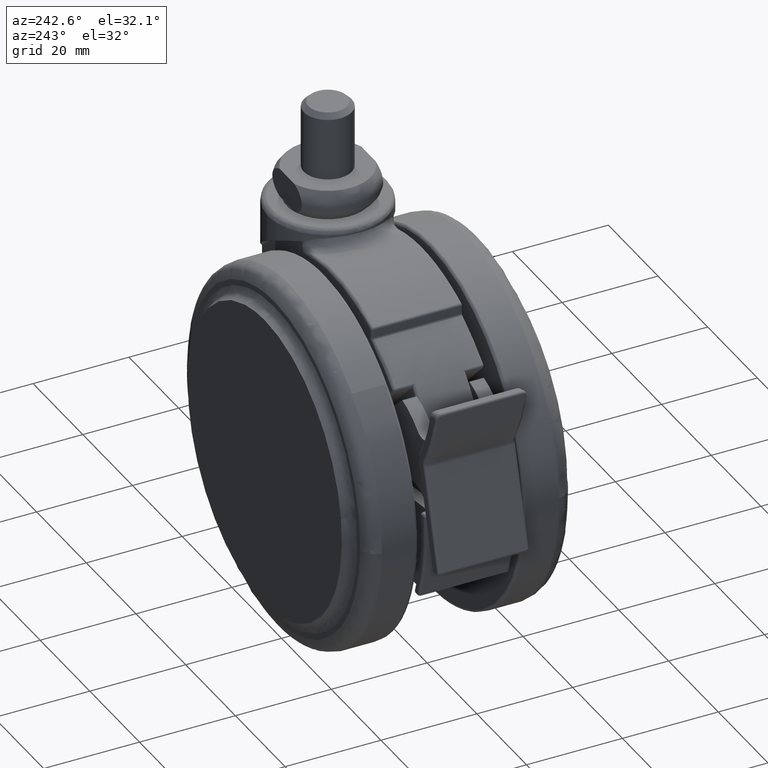
[diagram: clean part render]
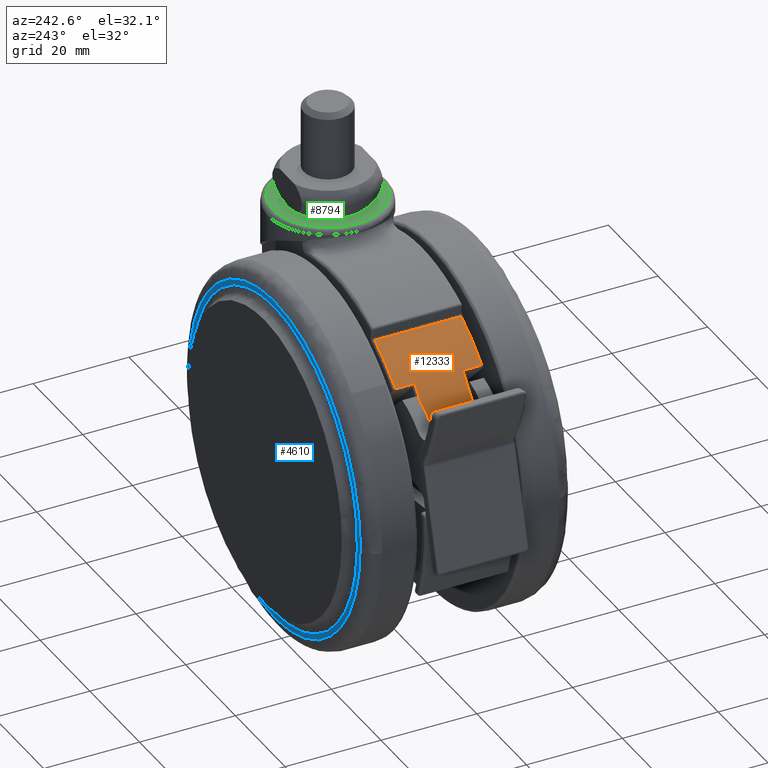
[diagram: same view with three faces highlighted in distinct colors, each labeled with its STEP entity id]
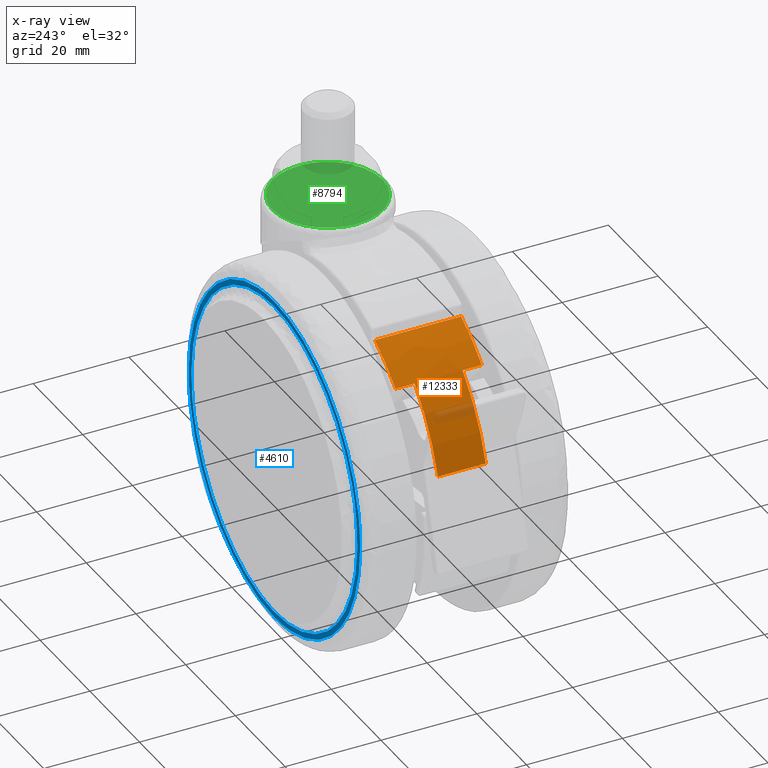
[diagram: x-ray of the same camera — body ghosted, the three highlighted faces saturated]
A machine part, auxiliary view with three faces highlighted in distinct colors.
The next image is the same camera in x-ray (body ghosted, the three faces saturated) — at least one of them is partly hidden behind the body in this view.
Their STEP definitions:

[orange] entity #12333 — the highlighted face is a freeform B-spline surface patch.
#11226=CARTESIAN_POINT('',(-36.270587493867652,-8.999999999999789,-8.984277112334031));
#11227=VERTEX_POINT('',#11226);
#11241=CARTESIAN_POINT('',(-44.607320986225851,-8.999999999999789,-14.956319708859120));
#11242=VERTEX_POINT('',#11241);
#11243=CARTESIAN_POINT('',(-44.607320986225872,-8.999999999999789,-14.956319708859100));
#11244=CARTESIAN_POINT('',(-40.874818428619925,-8.999999999999787,-11.361849371550587));
#11245=CARTESIAN_POINT('',(-36.270587493867659,-8.999999999999789,-8.984277112334016));
#11253=(BOUNDED_CURVE()B_SPLINE_CURVE(2,(#11243,#11244,#11245),.UNSPECIFIED.,.F.,.U.)CURVE()GEOMETRIC_REPRESENTATION_ITEM()QUASI_UNIFORM_CURVE()RATIONAL_B_SPLINE_CURVE((1.0,0.989513914268507,1.0))REPRESENTATION_ITEM(''));
#11254=EDGE_CURVE('',#11242,#11227,#11253,.T.);
#11402=CARTESIAN_POINT('',(-36.270587493867652,9.000000000000231,-8.984277112334031));
#11403=VERTEX_POINT('',#11402);
#11417=CARTESIAN_POINT('',(-36.270587493867652,-8.999999999999789,-8.984277112334031));
#11418=CARTESIAN_POINT('',(-36.270587493867652,9.000000000000231,-8.984277112334031));
#11419=QUASI_UNIFORM_CURVE('',1,(#11417,#11418),.UNSPECIFIED.,.F.,.U.);
#11420=EDGE_CURVE('',#11227,#11403,#11419,.T.);
#11474=CARTESIAN_POINT('',(-44.607320986225098,9.000000000000231,-14.956319708858400));
#11475=VERTEX_POINT('',#11474);
#11489=CARTESIAN_POINT('',(-36.270587493867652,9.000000000000231,-8.984277112334009));
#11490=CARTESIAN_POINT('',(-40.874818428619434,9.000000000000231,-11.361849371550329));
#11491=CARTESIAN_POINT('',(-44.607320986225112,9.000000000000231,-14.956319708858370));
#11499=(BOUNDED_CURVE()B_SPLINE_CURVE(2,(#11489,#11490,#11491),.UNSPECIFIED.,.F.,.U.)CURVE()GEOMETRIC_REPRESENTATION_ITEM()QUASI_UNIFORM_CURVE()RATIONAL_B_SPLINE_CURVE((1.0,0.989513914268509,1.0))REPRESENTATION_ITEM(''));
#11500=EDGE_CURVE('',#11403,#11475,#11499,.T.);
#12265=CARTESIAN_POINT('',(-54.305881331801245,9.450000000000237,-31.463765470249449));
#12266=CARTESIAN_POINT('',(-54.305881331801245,-9.461249999999788,-31.463765470249449));
#12267=CARTESIAN_POINT('',(-50.068826557946451,9.450000000000234,-15.417471439264148));
#12268=CARTESIAN_POINT('',(-50.068826557946451,-9.461249999999787,-15.417471439264148));
#12269=CARTESIAN_POINT('',(-35.039308708485585,9.450000000000237,-8.378311084632692));
#12270=CARTESIAN_POINT('',(-35.039308708485585,-9.461249999999790,-8.378311084632692));
#12278=(BOUNDED_SURFACE()B_SPLINE_SURFACE(1,2,((#12265,#12267,#12269),(#12266,#12268,#12270)),.UNSPECIFIED.,.F.,.F.,.U.)B_SPLINE_SURFACE_WITH_KNOTS((2,2),(3,3),(0.0,18.911250000000020),(0.0,31.553598569707781),.UNSPECIFIED.)GEOMETRIC_REPRESENTATION_ITEM()RATIONAL_B_SPLINE_SURFACE(((0.999165930924091,0.904324913825544,0.997371939502094),(0.999165930924091,0.904324913825544,0.997371939502094)))REPRESENTATION_ITEM('')SURFACE());
#12279=ORIENTED_EDGE('',*,*,#11254,.T.);
#12280=ORIENTED_EDGE('',*,*,#11420,.T.);
#12281=ORIENTED_EDGE('',*,*,#11500,.T.);
#12282=CARTESIAN_POINT('',(-44.607320986225098,4.999999933647231,-14.956319708858400));
#12283=VERTEX_POINT('',#12282);
#12284=CARTESIAN_POINT('',(-44.607320986225098,9.000000000000231,-14.956319708858400));
#12285=CARTESIAN_POINT('',(-44.607320986225098,4.999999933647231,-14.956319708858400));
#12286=QUASI_UNIFORM_CURVE('',1,(#12284,#12285),.UNSPECIFIED.,.F.,.U.);
#12287=EDGE_CURVE('',#11475,#12283,#12286,.T.);
#12288=ORIENTED_EDGE('',*,*,#12287,.T.);
#12289=CARTESIAN_POINT('',(-53.930638445239602,4.999999933647240,-30.146207961035351));
#12290=VERTEX_POINT('',#12289);
#12291=CARTESIAN_POINT('',(-44.607320986225119,4.999999933647191,-14.956319708858370));
#12292=CARTESIAN_POINT('',(-51.238584190148458,4.999999933647191,-21.342351203147544));
#12293=CARTESIAN_POINT('',(-53.930638445239587,4.999999933647191,-30.146207961035351));
#12301=(BOUNDED_CURVE()B_SPLINE_CURVE(2,(#12291,#12292,#12293),.UNSPECIFIED.,.F.,.U.)CURVE()GEOMETRIC_REPRESENTATION_ITEM()QUASI_UNIFORM_CURVE()RATIONAL_B_SPLINE_CURVE((1.0,0.967980025406699,1.0))REPRESENTATION_ITEM(''));
#12302=EDGE_CURVE('',#12283,#12290,#12301,.T.);
#12303=ORIENTED_EDGE('',*,*,#12302,.T.);
#12304=CARTESIAN_POINT('',(-53.930638445239602,-4.999999933647191,-30.146207961035351));
#12305=VERTEX_POINT('',#12304);
#12306=CARTESIAN_POINT('',(-53.930638445239602,4.999999933647240,-30.146207961035351));
#12307=CARTESIAN_POINT('',(-53.930638445239602,-4.999999933647191,-30.146207961035351));
#12308=QUASI_UNIFORM_CURVE('',1,(#12306,#12307),.UNSPECIFIED.,.F.,.U.);
#12309=EDGE_CURVE('',#12290,#12305,#12308,.T.);
#12310=ORIENTED_EDGE('',*,*,#12309,.T.);
#12311=CARTESIAN_POINT('',(-44.607320986225851,-4.999999933647191,-14.956319708859120));
#12312=VERTEX_POINT('',#12311);
#12313=CARTESIAN_POINT('',(-53.930638445239587,-4.999999933647191,-30.146207961035358));
#12314=CARTESIAN_POINT('',(-51.238584190148636,-4.999999933647191,-21.342351203148091));
#12315=CARTESIAN_POINT('',(-44.607320986225872,-4.999999933647191,-14.956319708859100));
#12323=(BOUNDED_CURVE()B_SPLINE_CURVE(2,(#12313,#12314,#12315),.UNSPECIFIED.,.F.,.U.)CURVE()GEOMETRIC_REPRESENTATION_ITEM()QUASI_UNIFORM_CURVE()RATIONAL_B_SPLINE_CURVE((1.0,0.967980025406703,1.0))REPRESENTATION_ITEM(''));
#12324=EDGE_CURVE('',#12305,#12312,#12323,.T.);
#12325=ORIENTED_EDGE('',*,*,#12324,.T.);
#12326=CARTESIAN_POINT('',(-44.607320986225851,-4.999999933647191,-14.956319708859120));
#12327=CARTESIAN_POINT('',(-44.607320986225851,-8.999999999999789,-14.956319708859120));
#12328=QUASI_UNIFORM_CURVE('',1,(#12326,#12327),.UNSPECIFIED.,.F.,.U.);
#12329=EDGE_CURVE('',#12312,#11242,#12328,.T.);
#12330=ORIENTED_EDGE('',*,*,#12329,.T.);
#12331=EDGE_LOOP('',(#12279,#12280,#12281,#12288,#12303,#12310,#12325,#12330));
#12332=FACE_OUTER_BOUND('',#12331,.T.);
#12333=ADVANCED_FACE('',(#12332),#12278,.T.);

[blue] entity #4610 — the highlighted face is a freeform B-spline surface patch.
#4403=CARTESIAN_POINT('',(-54.497276025979460,21.500000000000028,-40.933528376008518));
#4404=VERTEX_POINT('',#4403);
#4418=CARTESIAN_POINT('',(-20.0,21.500000000000000,-75.000000000000014));
#4419=VERTEX_POINT('',#4418);
#4420=CARTESIAN_POINT('',(-54.497276025979467,21.500000000000025,-40.933528376008510));
#4421=CARTESIAN_POINT('',(-54.069161582255717,21.500000000000014,-75.000000000005983));
#4422=CARTESIAN_POINT('',(-20.0,21.500000000000000,-75.000000000000014));
#4430=(BOUNDED_CURVE()B_SPLINE_CURVE(2,(#4420,#4421,#4422),.UNSPECIFIED.,.F.,.U.)B_SPLINE_CURVE_WITH_KNOTS((3,3),(0.752215704078379,1.0),.UNSPECIFIED.)CURVE()GEOMETRIC_REPRESENTATION_ITEM()RATIONAL_B_SPLINE_CURVE((0.994854295643767,0.709702639984365,1.0))REPRESENTATION_ITEM(''));
#4431=EDGE_CURVE('',#4404,#4419,#4430,.T.);
#4433=CARTESIAN_POINT('',(14.497276025979470,21.499999999999972,-40.066471623991482));
#4434=VERTEX_POINT('',#4433);
#4435=CARTESIAN_POINT('',(-20.0,21.500000000000000,-75.000000000000014));
#4436=CARTESIAN_POINT('',(14.500000000468120,21.499999999999982,-74.999999999994145));
#4437=CARTESIAN_POINT('',(14.500000000942149,21.499999999999972,-40.499999999988169));
#4438=CARTESIAN_POINT('',(14.500000000945130,21.499999999999968,-40.283227254257461));
#4439=CARTESIAN_POINT('',(14.497276025979462,21.499999999999972,-40.066471623991468));
#4447=(BOUNDED_CURVE()B_SPLINE_CURVE(2,(#4435,#4436,#4437,#4438,#4439),.UNSPECIFIED.,.F.,.U.)B_SPLINE_CURVE_WITH_KNOTS((3,2,3),(0.0,0.250000000000000,0.252215704078379),.UNSPECIFIED.)CURVE()GEOMETRIC_REPRESENTATION_ITEM()RATIONAL_B_SPLINE_CURVE((1.0,0.707106781186548,1.0,0.997404141202182,0.994854295643766))REPRESENTATION_ITEM(''));
#4448=EDGE_CURVE('',#4419,#4434,#4447,.T.);
#4497=CARTESIAN_POINT('',(-20.0,21.500000000000000,-5.999999999999998));
#4498=VERTEX_POINT('',#4497);
#4499=CARTESIAN_POINT('',(14.497276025979462,21.499999999999972,-40.066471623991468));
#4500=CARTESIAN_POINT('',(14.069161582255688,21.499999999999982,-5.999999999994046));
#4501=CARTESIAN_POINT('',(-20.0,21.500000000000000,-5.999999999999998));
#4509=(BOUNDED_CURVE()B_SPLINE_CURVE(2,(#4499,#4500,#4501),.UNSPECIFIED.,.F.,.U.)B_SPLINE_CURVE_WITH_KNOTS((3,3),(0.252215704078379,0.500000000000000),.UNSPECIFIED.)CURVE()GEOMETRIC_REPRESENTATION_ITEM()RATIONAL_B_SPLINE_CURVE((0.994854295643766,0.709702639984365,1.0))REPRESENTATION_ITEM(''));
#4510=EDGE_CURVE('',#4434,#4498,#4509,.T.);
#4512=CARTESIAN_POINT('',(-20.0,21.500000000000000,-5.999999999999998));
#4513=CARTESIAN_POINT('',(-54.500000000468120,21.500000000000011,-6.000000000005882));
#4514=CARTESIAN_POINT('',(-54.500000000942158,21.500000000000028,-40.500000000011852));
#4515=CARTESIAN_POINT('',(-54.500000000945143,21.500000000000028,-40.716772745742539));
#4516=CARTESIAN_POINT('',(-54.497276025979467,21.500000000000025,-40.933528376008510));
#4524=(BOUNDED_CURVE()B_SPLINE_CURVE(2,(#4512,#4513,#4514,#4515,#4516),.UNSPECIFIED.,.F.,.U.)B_SPLINE_CURVE_WITH_KNOTS((3,2,3),(0.500000000000000,0.750000000000000,0.752215704078379),.UNSPECIFIED.)CURVE()GEOMETRIC_REPRESENTATION_ITEM()RATIONAL_B_SPLINE_CURVE((1.0,0.707106781186548,1.0,0.997404141202182,0.994854295643767))REPRESENTATION_ITEM(''));
#4525=EDGE_CURVE('',#4498,#4404,#4524,.T.);
#4533=CARTESIAN_POINT('',(17.943553767249981,21.500000000000000,-2.553450133735389));
#4534=CARTESIAN_POINT('',(17.943553767249981,21.500000000000000,-78.446551716988836));
#4535=CARTESIAN_POINT('',(-57.943555617828068,21.500000000000000,-2.553450133735389));
#4536=CARTESIAN_POINT('',(-57.943555617828068,21.500000000000000,-78.446551716988836));
#4537=B_SPLINE_SURFACE_WITH_KNOTS('',1,1,((#4533,#4535),(#4534,#4536)),.UNSPECIFIED.,.F.,.F.,.U.,(2,2),(2,2),(0.0,75.893101583253440),(0.0,75.887109385078048),.UNSPECIFIED.);
#4538=ORIENTED_EDGE('',*,*,#4431,.F.);
#4539=ORIENTED_EDGE('',*,*,#4525,.F.);
#4540=ORIENTED_EDGE('',*,*,#4510,.F.);
#4541=ORIENTED_EDGE('',*,*,#4448,.F.);
#4542=EDGE_LOOP('',(#4538,#4539,#4540,#4541));
#4543=FACE_OUTER_BOUND('',#4542,.T.);
#4544=CARTESIAN_POINT('',(-20.0,21.500000000000000,-7.116724942436252));
#4545=VERTEX_POINT('',#4544);
#4546=CARTESIAN_POINT('',(-53.004433129182772,21.499999999864560,-35.484977837854771));
#4547=VERTEX_POINT('',#4546);
#4548=CARTESIAN_POINT('',(-20.0,21.500000000000000,-7.116724942436252));
#4549=CARTESIAN_POINT('',(-48.693878350418096,21.499999999932285,-7.116724942552643));
#4550=CARTESIAN_POINT('',(-53.004433129182772,21.499999999864553,-35.484977837854771));
#4558=(BOUNDED_CURVE()B_SPLINE_CURVE(2,(#4548,#4549,#4550),.UNSPECIFIED.,.F.,.U.)B_SPLINE_CURVE_WITH_KNOTS((3,3),(0.500000000000000,0.724102415376154),.UNSPECIFIED.)CURVE()GEOMETRIC_REPRESENTATION_ITEM()RATIONAL_B_SPLINE_CURVE((1.0,0.737447688866436,0.945604234433857))REPRESENTATION_ITEM(''));
#4559=EDGE_CURVE('',#4545,#4547,#4558,.T.);
#4560=ORIENTED_EDGE('',*,*,#4559,.T.);
#4561=CARTESIAN_POINT('',(-20.0,21.500000000000039,-73.883275057563750));
#4562=VERTEX_POINT('',#4561);
#4563=CARTESIAN_POINT('',(-53.004433129182772,21.499999999864553,-35.484977837854771));
#4564=CARTESIAN_POINT('',(-53.383275056081594,21.499999999868947,-37.978179789296441));
#4565=CARTESIAN_POINT('',(-53.383275056139453,21.499999999874071,-40.500000000216431));
#4566=CARTESIAN_POINT('',(-53.383275056905411,21.499999999941803,-73.883275057663823));
#4567=CARTESIAN_POINT('',(-20.0,21.500000000000039,-73.883275057563750));
#4575=(BOUNDED_CURVE()B_SPLINE_CURVE(2,(#4563,#4564,#4565,#4566,#4567),.UNSPECIFIED.,.F.,.U.)B_SPLINE_CURVE_WITH_KNOTS((3,2,3),(0.724102415376154,0.750000000000000,1.0),.UNSPECIFIED.)CURVE()GEOMETRIC_REPRESENTATION_ITEM()RATIONAL_B_SPLINE_CURVE((0.945604234433857,0.969659092320111,1.0,0.707106781186547,1.0))REPRESENTATION_ITEM(''));
#4576=EDGE_CURVE('',#4547,#4562,#4575,.T.);
#4577=ORIENTED_EDGE('',*,*,#4576,.T.);
#4578=CARTESIAN_POINT('',(13.004433129182781,21.499999999864510,-45.515022162145229));
#4579=VERTEX_POINT('',#4578);
#4580=CARTESIAN_POINT('',(-20.0,21.500000000000039,-73.883275057563750));
#4581=CARTESIAN_POINT('',(8.693878350418109,21.499999999932275,-73.883275057447378));
#4582=CARTESIAN_POINT('',(13.004433129182775,21.499999999864510,-45.515022162145229));
#4590=(BOUNDED_CURVE()B_SPLINE_CURVE(2,(#4580,#4581,#4582),.UNSPECIFIED.,.F.,.U.)B_SPLINE_CURVE_WITH_KNOTS((3,3),(0.0,0.224102415376154),.UNSPECIFIED.)CURVE()GEOMETRIC_REPRESENTATION_ITEM()RATIONAL_B_SPLINE_CURVE((1.0,0.737447688866436,0.945604234433857))REPRESENTATION_ITEM(''));
#4591=EDGE_CURVE('',#4562,#4579,#4590,.T.);
#4592=ORIENTED_EDGE('',*,*,#4591,.T.);
#4593=CARTESIAN_POINT('',(13.004433129182773,21.499999999864510,-45.515022162145229));
#4594=CARTESIAN_POINT('',(13.383275056081596,21.499999999868916,-43.021820210703574));
#4595=CARTESIAN_POINT('',(13.383275056139460,21.499999999874031,-40.499999999783583));
#4596=CARTESIAN_POINT('',(13.383275056905401,21.499999999941775,-7.116724942336218));
#4597=CARTESIAN_POINT('',(-20.0,21.500000000000000,-7.116724942436252));
#4605=(BOUNDED_CURVE()B_SPLINE_CURVE(2,(#4593,#4594,#4595,#4596,#4597),.UNSPECIFIED.,.F.,.U.)B_SPLINE_CURVE_WITH_KNOTS((3,2,3),(0.224102415376154,0.250000000000000,0.500000000000000),.UNSPECIFIED.)CURVE()GEOMETRIC_REPRESENTATION_ITEM()RATIONAL_B_SPLINE_CURVE((0.945604234433857,0.969659092320111,1.0,0.707106781186547,1.0))REPRESENTATION_ITEM(''));
#4606=EDGE_CURVE('',#4579,#4545,#4605,.T.);
#4607=ORIENTED_EDGE('',*,*,#4606,.T.);
#4608=EDGE_LOOP('',(#4560,#4577,#4592,#4607));
#4609=FACE_BOUND('',#4608,.T.);
#4610=ADVANCED_FACE('',(#4543,#4609),#4537,.T.);

[green] entity #8794 — the highlighted face is a freeform B-spline surface patch.
#8476=CARTESIAN_POINT('',(-11.496368189848241,0.288996098564049,-3.592407E-016));
#8477=VERTEX_POINT('',#8476);
#8478=CARTESIAN_POINT('',(-11.500000000000000,2.842171E-014,0.0));
#8479=VERTEX_POINT('',#8478);
#8480=CARTESIAN_POINT('',(-11.496368189848235,0.288996098564049,-3.592407E-016));
#8481=CARTESIAN_POINT('',(-11.500000006553137,0.144520869901864,-1.796204E-016));
#8482=CARTESIAN_POINT('',(-11.500000000000000,2.842171E-014,0.0));
#8490=(BOUNDED_CURVE()B_SPLINE_CURVE(2,(#8480,#8481,#8482),.UNSPECIFIED.,.F.,.U.)B_SPLINE_CURVE_WITH_KNOTS((3,3),(0.495579891760125,0.500000000000000),.UNSPECIFIED.)CURVE()GEOMETRIC_REPRESENTATION_ITEM()RATIONAL_B_SPLINE_CURVE((0.989826157659690,0.994821521080476,1.0))REPRESENTATION_ITEM(''));
#8491=EDGE_CURVE('',#8477,#8479,#8490,.T.);
#8555=CARTESIAN_POINT('',(11.496368189848241,-0.288996098563988,-3.592407E-016));
#8556=VERTEX_POINT('',#8555);
#8570=CARTESIAN_POINT('',(-11.500000000000000,2.842171E-014,0.0));
#8571=CARTESIAN_POINT('',(-11.500014276658719,-0.513304875560962,-1.005318E-019));
#8572=CARTESIAN_POINT('',(-11.424921464799050,-1.633267267683937,-1.493252E-018));
#8573=CARTESIAN_POINT('',(-11.088412165515869,-3.188884221436597,-7.054592E-018));
#8574=CARTESIAN_POINT('',(-10.506477441754649,-4.768182214923113,-1.645392E-017));
#8575=CARTESIAN_POINT('',(-9.686743777459197,-6.293984057192005,-2.955697E-017));
#8576=CARTESIAN_POINT('',(-8.656443217321757,-7.628658515283053,-4.591138E-017));
#8577=CARTESIAN_POINT('',(-7.485992559941781,-8.771370908486674,-6.441713E-017));
#8578=CARTESIAN_POINT('',(-6.140574595631311,-9.784926754476942,-8.563038E-017));
#8579=CARTESIAN_POINT('',(-4.686737593406467,-10.544095553026301,-1.084871E-016));
#8580=CARTESIAN_POINT('',(-3.013692098189890,-11.138284104679411,-1.347353E-016));
#8581=CARTESIAN_POINT('',(-1.406715684803852,-11.466116229874350,-1.598993E-016));
#8582=CARTESIAN_POINT('',(0.744192570138363,-11.545685649405060,-1.935103E-016));
#8583=CARTESIAN_POINT('',(2.880301871715087,-11.218937286249760,-2.268104E-016));
#8584=CARTESIAN_POINT('',(5.074205851054130,-10.396268802096040,-2.609159E-016));
#8585=CARTESIAN_POINT('',(6.875808159522422,-9.298047423291076,-2.888398E-016));
#8586=CARTESIAN_POINT('',(8.585979501475114,-7.767604252505025,-3.152508E-016));
#8587=CARTESIAN_POINT('',(9.904417811686987,-5.996491718683217,-3.354961E-016));
#8588=CARTESIAN_POINT('',(10.859927989949851,-3.961496816721919,-3.500209E-016));
#8589=CARTESIAN_POINT('',(11.358497604589511,-2.106047539758469,-3.574440E-016));
#8590=CARTESIAN_POINT('',(11.482311892259020,-0.848792173361972,-3.591311E-016));
#8591=CARTESIAN_POINT('',(11.496368189848241,-0.288996098563988,-3.592407E-016));
#8592=B_SPLINE_CURVE_WITH_KNOTS('',3,(#8570,#8571,#8572,#8573,#8574,#8575,#8576,#8577,#8578,#8579,#8580,#8581,#8582,#8583,#8584,#8585,#8586,#8587,#8588,#8589,#8590,#8591),.UNSPECIFIED.,.F.,.U.,(4,1,1,1,1,1,1,1,1,1,1,1,1,1,1,1,1,1,1,4),(0.000000163517115,1.539922088072459,3.359905197266436,4.759918320283898,6.579892346753336,8.539880882378771,9.799870037986679,11.479871229578270,13.579838351523239,14.699837174992290,16.799822004028300,18.479695469121580,21.139688299695930,23.239670841419539,25.479640010112281,27.439629573288869,30.099621173473771,32.059577446230577,34.159580146949672,35.839510294836032),.UNSPECIFIED.);
#8593=EDGE_CURVE('',#8479,#8556,#8592,.T.);
#8627=CARTESIAN_POINT('',(11.500000000000000,2.842171E-014,0.0));
#8628=VERTEX_POINT('',#8627);
#8629=CARTESIAN_POINT('',(11.500000000000000,2.842171E-014,0.0));
#8630=CARTESIAN_POINT('',(11.500036272914750,0.653297496664674,-1.276669E-019));
#8631=CARTESIAN_POINT('',(11.380438020389770,2.053264974787295,-2.270486E-018));
#8632=CARTESIAN_POINT('',(10.772563707891241,4.268882892666383,-1.219987E-017));
#8633=CARTESIAN_POINT('',(9.729581882983551,6.268169816208349,-2.888280E-017));
#8634=CARTESIAN_POINT('',(8.558338999180670,7.729160245321418,-4.746341E-017));
#8635=CARTESIAN_POINT('',(7.381370248797001,8.864410332525736,-6.606951E-017));
#8636=CARTESIAN_POINT('',(5.984665874931204,9.890183038574769,-8.808621E-017));
#8637=CARTESIAN_POINT('',(4.260435678140578,10.737783723248420,-1.151836E-016));
#8638=CARTESIAN_POINT('',(2.647531092112039,11.223532228036751,-1.404712E-016));
#8639=CARTESIAN_POINT('',(1.126154504885239,11.476429309706580,-1.642834E-016));
#8640=CARTESIAN_POINT('',(-0.650663475655831,11.542185956358070,-1.920488E-016));
#8641=CARTESIAN_POINT('',(-2.601925656814843,11.267964050772949,-2.224720E-016));
#8642=CARTESIAN_POINT('',(-4.644495266149190,10.586051527399100,-2.542414E-016));
#8643=CARTESIAN_POINT('',(-6.250355219682325,9.711423043457641,-2.791519E-016));
#8644=CARTESIAN_POINT('',(-7.731160412089645,8.569251903496440,-3.020566E-016));
#8645=CARTESIAN_POINT('',(-8.804562715756653,7.457226895776039,-3.186040E-016));
#8646=CARTESIAN_POINT('',(-9.820154676145355,6.057633094839996,-3.341920E-016));
#8647=CARTESIAN_POINT('',(-10.588360536701700,4.609550482728333,-3.459065E-016));
#8648=CARTESIAN_POINT('',(-11.269582528752300,2.617219923115606,-3.561555E-016));
#8649=CARTESIAN_POINT('',(-11.474301816339670,1.175389187605293,-3.590701E-016));
#8650=CARTESIAN_POINT('',(-11.496368189848241,0.288996098564049,-3.592407E-016));
#8651=B_SPLINE_CURVE_WITH_KNOTS('',3,(#8629,#8630,#8631,#8632,#8633,#8634,#8635,#8636,#8637,#8638,#8639,#8640,#8641,#8642,#8643,#8644,#8645,#8646,#8647,#8648,#8649,#8650),.UNSPECIFIED.,.F.,.U.,(4,1,1,1,1,1,1,1,1,1,1,1,1,1,1,1,1,1,1,4),(0.000000163507451,1.959908445066169,4.199933378294617,6.859895558533033,8.679880551531443,9.799870037981172,11.759867065565031,13.859840067627831,15.539817425782530,16.799822004025369,18.479695469119228,20.859695783268140,22.679684135541901,24.919637205130769,26.319637704828590,28.279619759283491,29.539621116527560,31.499593269761260,33.179562926085367,35.839510294836003),.UNSPECIFIED.);
#8652=EDGE_CURVE('',#8628,#8477,#8651,.T.);
#8654=CARTESIAN_POINT('',(11.496368189848233,-0.288996098563988,-3.592407E-016));
#8655=CARTESIAN_POINT('',(11.500000006553137,-0.144520869901805,-1.796204E-016));
#8656=CARTESIAN_POINT('',(11.500000000000000,2.842171E-014,0.0));
#8664=(BOUNDED_CURVE()B_SPLINE_CURVE(2,(#8654,#8655,#8656),.UNSPECIFIED.,.F.,.U.)B_SPLINE_CURVE_WITH_KNOTS((3,3),(0.995579891760125,1.0),.UNSPECIFIED.)CURVE()GEOMETRIC_REPRESENTATION_ITEM()RATIONAL_B_SPLINE_CURVE((0.989826157659691,0.994821521080476,1.0))REPRESENTATION_ITEM(''));
#8665=EDGE_CURVE('',#8556,#8628,#8664,.T.);
#8717=CARTESIAN_POINT('',(-12.648849955421539,-12.647851772015640,0.0));
#8718=CARTESIAN_POINT('',(12.648850572329611,-12.647851772015640,0.0));
#8719=CARTESIAN_POINT('',(-12.648849955421539,12.647852388875091,0.0));
#8720=CARTESIAN_POINT('',(12.648850572329611,12.647852388875091,0.0));
#8721=B_SPLINE_SURFACE_WITH_KNOTS('',1,1,((#8717,#8719),(#8718,#8720)),.UNSPECIFIED.,.F.,.F.,.U.,(2,2),(2,2),(0.0,25.297700527751150),(0.0,25.295704160890729),.UNSPECIFIED.);
#8722=ORIENTED_EDGE('',*,*,#8652,.T.);
#8723=ORIENTED_EDGE('',*,*,#8491,.T.);
#8724=ORIENTED_EDGE('',*,*,#8593,.T.);
#8725=ORIENTED_EDGE('',*,*,#8665,.T.);
#8726=EDGE_LOOP('',(#8722,#8723,#8724,#8725));
#8727=FACE_OUTER_BOUND('',#8726,.T.);
#8728=CARTESIAN_POINT('',(3.0,2.842171E-014,0.0));
#8729=VERTEX_POINT('',#8728);
#8730=CARTESIAN_POINT('',(0.183145618736188,2.994404395257579,6.106227E-016));
#8731=VERTEX_POINT('',#8730);
#8732=CARTESIAN_POINT('',(3.0,2.842171E-014,0.0));
#8733=CARTESIAN_POINT('',(3.000000000000000,2.822118200592836,0.0));
#8734=CARTESIAN_POINT('',(0.183145618736189,2.994404395257579,0.0));
#8742=(BOUNDED_CURVE()B_SPLINE_CURVE(2,(#8732,#8733,#8734),.UNSPECIFIED.,.F.,.U.)B_SPLINE_CURVE_WITH_KNOTS((3,3),(0.500000000000000,0.739332962234384),.UNSPECIFIED.)CURVE()GEOMETRIC_REPRESENTATION_ITEM()RATIONAL_B_SPLINE_CURVE((1.0,0.719603993292051,0.976072041656947))REPRESENTATION_ITEM(''));
#8743=EDGE_CURVE('',#8729,#8731,#8742,.T.);
#8744=ORIENTED_EDGE('',*,*,#8743,.F.);
#8745=CARTESIAN_POINT('',(-0.183145618736188,-2.994404395257522,6.106227E-016));
#8746=VERTEX_POINT('',#8745);
#8747=CARTESIAN_POINT('',(-0.183145618736189,-2.994404395257522,0.0));
#8748=CARTESIAN_POINT('',(-0.091658289961760,-2.999999999999971,0.0));
#8749=CARTESIAN_POINT('',(0.0,-2.999999999999972,0.0));
#8750=CARTESIAN_POINT('',(3.0,-2.999999999999971,0.0));
#8751=CARTESIAN_POINT('',(3.0,2.842171E-014,0.0));
#8759=(BOUNDED_CURVE()B_SPLINE_CURVE(2,(#8747,#8748,#8749,#8750,#8751),.UNSPECIFIED.,.F.,.U.)B_SPLINE_CURVE_WITH_KNOTS((3,2,3),(0.239332962234384,0.250000000000000,0.500000000000000),.UNSPECIFIED.)CURVE()GEOMETRIC_REPRESENTATION_ITEM()RATIONAL_B_SPLINE_CURVE((0.976072041656947,0.987502787894496,1.0,0.707106781186548,1.0))REPRESENTATION_ITEM(''));
#8760=EDGE_CURVE('',#8746,#8729,#8759,.T.);
#8761=ORIENTED_EDGE('',*,*,#8760,.F.);
#8762=CARTESIAN_POINT('',(-3.0,2.842171E-014,0.0));
#8763=VERTEX_POINT('',#8762);
#8764=CARTESIAN_POINT('',(-3.0,2.842171E-014,0.0));
#8765=CARTESIAN_POINT('',(-3.000000000000001,-2.822118200592780,0.0));
#8766=CARTESIAN_POINT('',(-0.183145618736189,-2.994404395257522,0.0));
#8774=(BOUNDED_CURVE()B_SPLINE_CURVE(2,(#8764,#8765,#8766),.UNSPECIFIED.,.F.,.U.)B_SPLINE_CURVE_WITH_KNOTS((3,3),(0.0,0.239332962234384),.UNSPECIFIED.)CURVE()GEOMETRIC_REPRESENTATION_ITEM()RATIONAL_B_SPLINE_CURVE((1.0,0.719603993292051,0.976072041656947))REPRESENTATION_ITEM(''));
#8775=EDGE_CURVE('',#8763,#8746,#8774,.T.);
#8776=ORIENTED_EDGE('',*,*,#8775,.F.);
#8777=CARTESIAN_POINT('',(0.183145618736189,2.994404395257579,0.0));
#8778=CARTESIAN_POINT('',(0.091658289961760,3.000000000000029,0.0));
#8779=CARTESIAN_POINT('',(0.0,3.000000000000029,0.0));
#8780=CARTESIAN_POINT('',(-3.0,3.000000000000028,0.0));
#8781=CARTESIAN_POINT('',(-3.0,2.842171E-014,0.0));
#8789=(BOUNDED_CURVE()B_SPLINE_CURVE(2,(#8777,#8778,#8779,#8780,#8781),.UNSPECIFIED.,.F.,.U.)B_SPLINE_CURVE_WITH_KNOTS((3,2,3),(0.739332962234384,0.750000000000000,1.0),.UNSPECIFIED.)CURVE()GEOMETRIC_REPRESENTATION_ITEM()RATIONAL_B_SPLINE_CURVE((0.976072041656947,0.987502787894496,1.0,0.707106781186548,1.0))REPRESENTATION_ITEM(''));
#8790=EDGE_CURVE('',#8731,#8763,#8789,.T.);
#8791=ORIENTED_EDGE('',*,*,#8790,.F.);
#8792=EDGE_LOOP('',(#8744,#8761,#8776,#8791));
#8793=FACE_BOUND('',#8792,.T.);
#8794=ADVANCED_FACE('',(#8727,#8793),#8721,.T.);